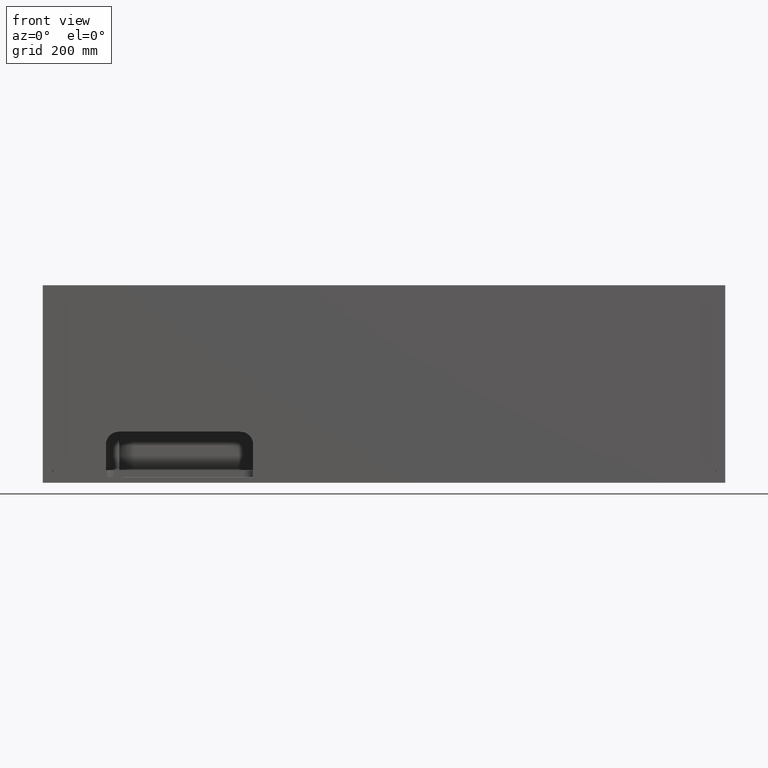
[diagram: clean part render]
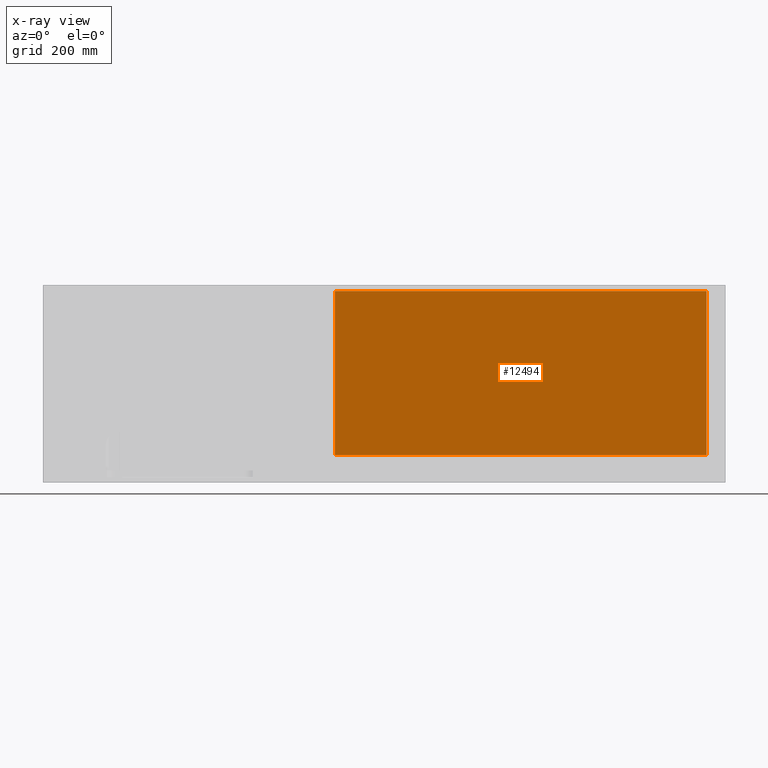
[diagram: x-ray — body ghosted, one internal face saturated and labeled with its STEP entity id]
A machine part, front view, then the same camera in x-ray: the body is ghosted and one INTERNAL B-rep face — a face not visible from any outside direction — is saturated and labeled: STEP entity #12494.
In plain terms, the highlighted planar face has unit normal (0, 1, 0).
Its self-contained STEP definition (entity closure, byte-faithful):
#270 = EDGE_CURVE ( 'NONE', #8575, #7738, #5826, .T. ) ;
#768 = DIRECTION ( 'NONE',  ( 0.0000000000000000000, 1.000000000000000000, 0.0000000000000000000 ) ) ;
#777 = ORIENTED_EDGE ( 'NONE', *, *, #15888, .F. ) ;
#1244 = CARTESIAN_POINT ( 'NONE',  ( 694.4999999999998863, 45.49999999999998579, -14.00000000000001243 ) ) ;
#1867 = EDGE_LOOP ( 'NONE', ( #18058, #4316, #777, #11984 ) ) ;
#2204 = FACE_OUTER_BOUND ( 'NONE', #1867, .T. ) ;
#3368 = CARTESIAN_POINT ( 'NONE',  ( 694.4999999999998863, 45.49999999999998579, -404.0000000000000000 ) ) ;
#3529 = CARTESIAN_POINT ( 'NONE',  ( 1578.500000000000000, 45.49999999999998579, -404.0000000000000000 ) ) ;
#3981 = CARTESIAN_POINT ( 'NONE',  ( 1578.500000000000000, 45.49999999999998579, -14.00000000000001243 ) ) ;
#4175 = DIRECTION ( 'NONE',  ( -0.0000000000000000000, -0.0000000000000000000, 1.000000000000000000 ) ) ;
#4316 = ORIENTED_EDGE ( 'NONE', *, *, #11457, .F. ) ;
#5306 = LINE ( 'NONE', #11196, #15092 ) ;
#5826 = LINE ( 'NONE', #6200, #17382 ) ;
#6200 = CARTESIAN_POINT ( 'NONE',  ( 1578.500000000000000, 45.49999999999998579, -404.0000000000000000 ) ) ;
#6639 = DIRECTION ( 'NONE',  ( 0.0000000000000000000, -0.0000000000000000000, 1.000000000000000000 ) ) ;
#7738 = VERTEX_POINT ( 'NONE', #9688 ) ;
#8067 = PLANE ( 'NONE',  #11020 ) ;
#8575 = VERTEX_POINT ( 'NONE', #3529 ) ;
#8983 = EDGE_CURVE ( 'NONE', #7738, #16446, #17245, .T. ) ;
#9132 = DIRECTION ( 'NONE',  ( -0.0000000000000000000, -0.0000000000000000000, 1.000000000000000000 ) ) ;
#9688 = CARTESIAN_POINT ( 'NONE',  ( 1578.500000000000000, 45.49999999999998579, -14.00000000000001243 ) ) ;
#9868 = DIRECTION ( 'NONE',  ( -1.000000000000000000, 0.0000000000000000000, 0.0000000000000000000 ) ) ;
#10374 = VECTOR ( 'NONE', #4175, 1000.000000000000000 ) ;
#11020 = AXIS2_PLACEMENT_3D ( 'NONE', #13979, #768, #6639 ) ;
#11196 = CARTESIAN_POINT ( 'NONE',  ( 1578.500000000000000, 45.49999999999998579, -404.0000000000000000 ) ) ;
#11457 = EDGE_CURVE ( 'NONE', #14223, #16446, #11510, .T. ) ;
#11510 = LINE ( 'NONE', #17442, #10374 ) ;
#11984 = ORIENTED_EDGE ( 'NONE', *, *, #270, .T. ) ;
#12188 = VECTOR ( 'NONE', #9868, 1000.000000000000000 ) ;
#12494 = ADVANCED_FACE ( 'NONE', ( #2204 ), #8067, .F. ) ;
#13979 = CARTESIAN_POINT ( 'NONE',  ( 1578.500000000000000, 45.49999999999998579, -404.0000000000000000 ) ) ;
#14223 = VERTEX_POINT ( 'NONE', #3368 ) ;
#15092 = VECTOR ( 'NONE', #17120, 1000.000000000000000 ) ;
#15888 = EDGE_CURVE ( 'NONE', #8575, #14223, #5306, .T. ) ;
#16446 = VERTEX_POINT ( 'NONE', #1244 ) ;
#17120 = DIRECTION ( 'NONE',  ( -1.000000000000000000, 0.0000000000000000000, 0.0000000000000000000 ) ) ;
#17245 = LINE ( 'NONE', #3981, #12188 ) ;
#17382 = VECTOR ( 'NONE', #9132, 1000.000000000000000 ) ;
#17442 = CARTESIAN_POINT ( 'NONE',  ( 694.4999999999998863, 45.49999999999998579, -404.0000000000000000 ) ) ;
#18058 = ORIENTED_EDGE ( 'NONE', *, *, #8983, .T. ) ;